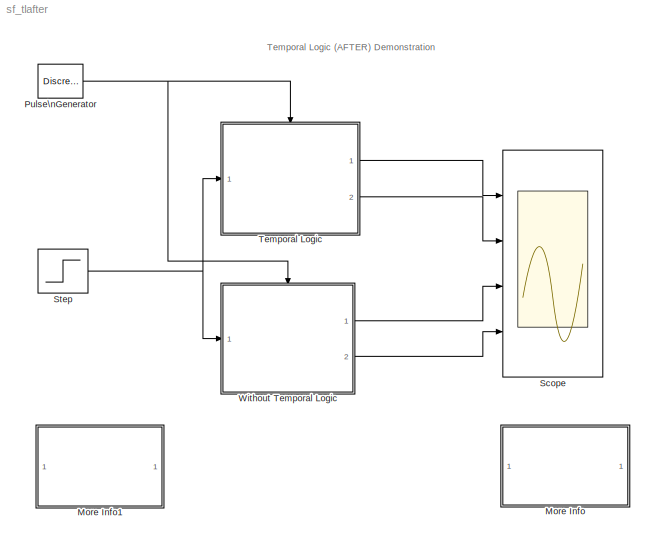
MODEL sf_tlafter
KIND model
BLOCK [SubSystem] More Info
  MaskDisplay = disp('Double click\\nhere for\\ninformation on\\nthis demonstration')
  MaskIconFrame = on
  MaskIconOpaque = on
  MaskIconRotate = none
  MaskIconUnits = autoscale
  MinAlgLoopOccurrences = off
  Ports = []
  PropExecContextAcrossSSBoundary = on
  RTWSystemCode = Auto
  TreatAsAtomicUnit = off
BLOCK [SubSystem] More Info1
  MaskDisplay = disp('Double click\\nhere for<path> Help')
  MaskIconFrame = on
  MaskIconOpaque = on
  MaskIconRotate = none
  MaskIconUnits = autoscale
  MinAlgLoopOccurrences = off
  OpenFcn = simcad(bdroot);
  Ports = []
  PropExecContextAcrossSSBoundary = on
  RTWSystemCode = Auto
  TreatAsAtomicUnit = off
BLOCK [DiscretePulseGenerator] Pulse\nGenerator
  Period = 1
  Ports = [0, 1]
  PulseType = Time based
  PulseWidth = 50
BLOCK [Scope] Scope
  DataFormat = StructureWithTime
  NumInputPorts = 4
  Ports = [4]
  TimeRange = 100
  YMax = 6~1.5~6~1.5
  YMin = 0~-0.5~0~-0.5
  ZoomMode = xonly
BLOCK [Step] Step
  SampleTime = 0
  Time = 60
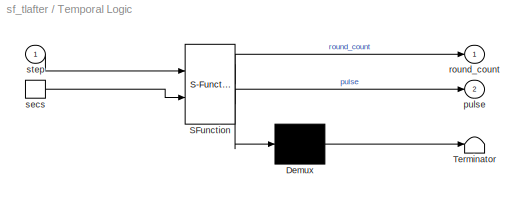
BLOCK [SubSystem] Temporal Logic
  MaskDescription = Stateflow diagram
  MaskDisplay = plot(sf('Private','sfblk','xIcon'),sf('Private','sfblk','yIcon'));text(0.5,0,sf('Private', 'sfblk', 'tIcon'),'HorizontalAl','Center','VerticalAl','Bottom');
  MaskIconFrame = off
  MaskIconOpaque = off
  MaskIconRotate = none
  MaskIconUnits = autoscale
  MaskSelfModifiable = on
  MaskType = Stateflow
  MinAlgLoopOccurrences = off
  Ports = [1, 2, 0, 1]
  PropExecContextAcrossSSBoundary = on
  RTWSystemCode = Auto
  TreatAsAtomicUnit = on
BLOCK [Demux] Temporal Logic/ Demux 
  Outputs = 1
  Ports = [1, 1]
BLOCK [S-Function] Temporal Logic/ SFunction 
  FunctionName = sf_sfun
  PortCounts = [2 3]
  Ports = [2, 3]
  Tag = Stateflow S-Function sf_tlafter 1
BLOCK [Terminator] Temporal Logic/ Terminator 
BLOCK [Outport] Temporal Logic/pulse
  IconDisplay = Port number
  Port = 2
BLOCK [Outport] Temporal Logic/round_count
  IconDisplay = Port number
BLOCK [TriggerPort] Temporal Logic/secs
  Ports = [0, 1]
  ShowOutputPort = on
BLOCK [Inport] Temporal Logic/step
  IconDisplay = Port number
  LatchInput = off
  Port = 1
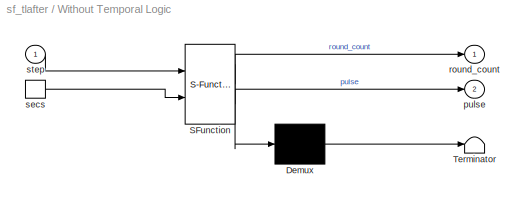
BLOCK [SubSystem] Without Temporal Logic
  MaskDescription = Stateflow diagram
  MaskDisplay = plot(sf('Private','sfblk','xIcon'),sf('Private','sfblk','yIcon'));text(0.5,0,sf('Private', 'sfblk', 'tIcon'),'HorizontalAl','Center','VerticalAl','Bottom');
  MaskIconFrame = off
  MaskIconOpaque = off
  MaskIconRotate = none
  MaskIconUnits = autoscale
  MaskSelfModifiable = on
  MaskType = Stateflow
  MinAlgLoopOccurrences = off
  Ports = [1, 2, 0, 1]
  PropExecContextAcrossSSBoundary = on
  RTWSystemCode = Auto
  TreatAsAtomicUnit = on
BLOCK [Demux] Without Temporal Logic/ Demux 
  Outputs = 1
  Ports = [1, 1]
BLOCK [S-Function] Without Temporal Logic/ SFunction 
  FunctionName = sf_sfun
  PortCounts = [2 3]
  Ports = [2, 3]
  Tag = Stateflow S-Function sf_tlafter 2
BLOCK [Terminator] Without Temporal Logic/ Terminator 
BLOCK [Outport] Without Temporal Logic/pulse
  IconDisplay = Port number
  Port = 2
BLOCK [Outport] Without Temporal Logic/round_count
  IconDisplay = Port number
BLOCK [TriggerPort] Without Temporal Logic/secs
  Ports = [0, 1]
  ShowOutputPort = on
BLOCK [Inport] Without Temporal Logic/step
  IconDisplay = Port number
  LatchInput = off
  Port = 1
ANNOTATION (root): Temporal Logic (AFTER) Demonstration
ANNOTATION More Info: Temporal Logic using the AFTER function
ANNOTATION More Info: This simple demonstration compares the difference between two Stateflow charts: one chart\nuses temporal logic and the AFTER function to achieve the goal, and the other chart achieves\nthe same goal without using temporal logic. \n\nThe AFTER function allows you to easily obtain the number of events that have occurred within \nthat chart and then used as a condition for an event transition. For ex...<+1126ch>
NET Pulse\nGenerator:1 -> Temporal Logic:trigger, Without Temporal Logic:trigger
NET Step:1 -> Temporal Logic:1, Without Temporal Logic:1
LINE Temporal Logic/ Demux :1 -> Temporal Logic/ Terminator :1
LINE Temporal Logic/ SFunction :1 -> Temporal Logic/ Demux :1
LINE Temporal Logic/ SFunction :2 -> Temporal Logic/round_count:1
LINE Temporal Logic/ SFunction :3 -> Temporal Logic/pulse:1
LINE Temporal Logic/secs:1 -> Temporal Logic/ SFunction :2
LINE Temporal Logic/step:1 -> Temporal Logic/ SFunction :1
LINE Temporal Logic:1 -> Scope:1
LINE Temporal Logic:2 -> Scope:2
LINE Without Temporal Logic/ Demux :1 -> Without Temporal Logic/ Terminator :1
LINE Without Temporal Logic/ SFunction :1 -> Without Temporal Logic/ Demux :1
LINE Without Temporal Logic/ SFunction :2 -> Without Temporal Logic/round_count:1
LINE Without Temporal Logic/ SFunction :3 -> Without Temporal Logic/pulse:1
LINE Without Temporal Logic/secs:1 -> Without Temporal Logic/ SFunction :2
LINE Without Temporal Logic/step:1 -> Without Temporal Logic/ SFunction :1
LINE Without Temporal Logic:1 -> Scope:3
LINE Without Temporal Logic:2 -> Scope:4
note: NET lines group one-source signal fan-out (src -> all destinations, sorted); 1:1 wires keep LINE
CHART Temporal Logic states=2 transitions=3
  STATE_LABEL 'Off'
  STATE_LABEL 'On\\nen:pulse=1;\\nexit:pulse=0;'
CHART Without Temporal Logic states=3 transitions=4
  STATE_LABEL 'A\\ncount_after=2;'
  STATE_LABEL 'B\\nentry: pulse=1;\\nexit: pulse=0;'
  STATE_LABEL 'On'
note: 1 file-system path scrubbed to <path> (not preserved elsewhere — flat text is the only slx artifact)
